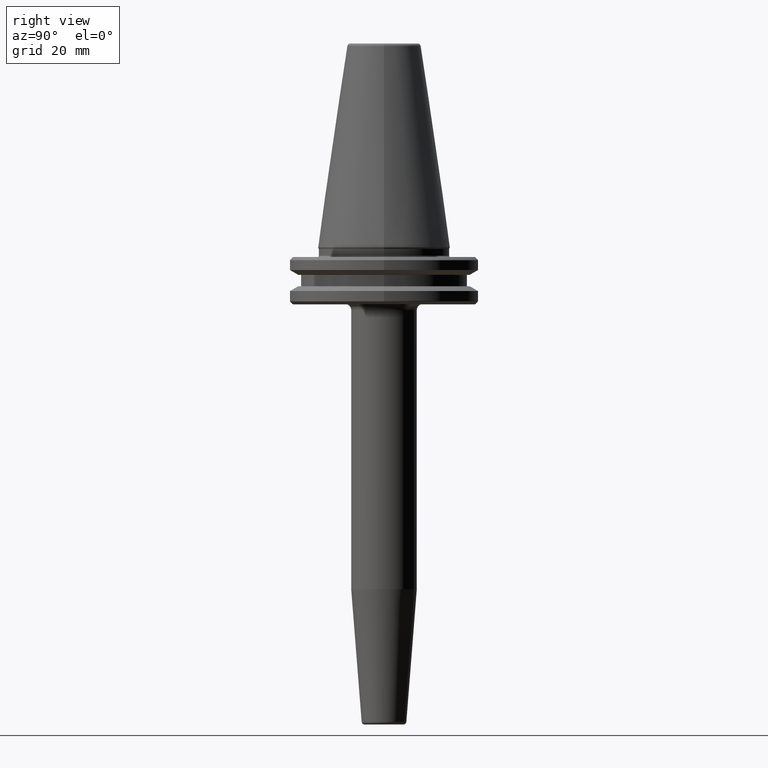
[diagram: clean part render]
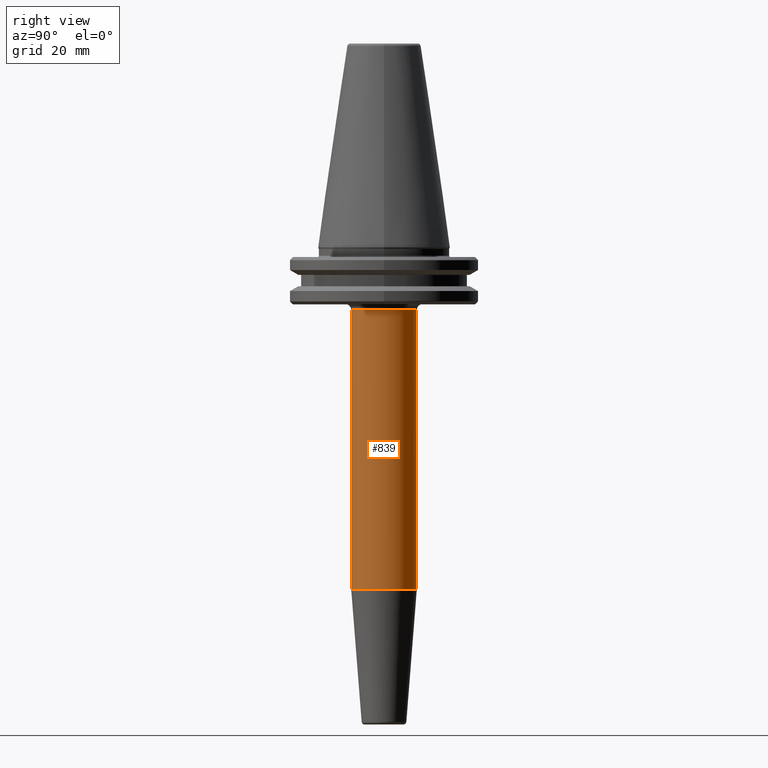
[diagram: same view with one face highlighted and labeled with its STEP entity id]
A machine part, right view. The second image highlights one B-rep face of the part: STEP entity #839.
In plain terms, the highlighted cylindrical surface (edge-blend (fillet) strip) has radius 11 mm, axis along (-0, 0, -1).
Its self-contained STEP definition (entity closure, byte-faithful):
#20 = CARTESIAN_POINT ( 'NONE',  ( 0.0000000000000000000, -1.701835490922485000E-014, -20.98284271247460700 ) ) ;
#34 = ORIENTED_EDGE ( 'NONE', *, *, #671, .F. ) ;
#42 = FACE_OUTER_BOUND ( 'NONE', #1220, .T. ) ;
#86 = CARTESIAN_POINT ( 'NONE',  ( 0.0000000000000000000, 11.00000000000001100, -160.0000000000000000 ) ) ;
#115 = VECTOR ( 'NONE', #676, 1000.000000000000000 ) ;
#123 = VERTEX_POINT ( 'NONE', #855 ) ;
#156 = VERTEX_POINT ( 'NONE', #284 ) ;
#178 = LINE ( 'NONE', #706, #659 ) ;
#202 = CARTESIAN_POINT ( 'NONE',  ( 1.347111479062089000E-015, 11.00000000000000000, -114.6067425191116100 ) ) ;
#215 = DIRECTION ( 'NONE',  ( 0.0000000000000000000, 1.000000000000000000, 0.0000000000000000000 ) ) ;
#284 = CARTESIAN_POINT ( 'NONE',  ( 0.0000000000000000000, -11.00000000000001100, -114.6067425191116100 ) ) ;
#311 = DIRECTION ( 'NONE',  ( -0.0000000000000000000, 1.256330602389183300E-016, -1.000000000000000000 ) ) ;
#313 = CARTESIAN_POINT ( 'NONE',  ( 0.0000000000000000000, -5.256097865015167400E-015, -114.6067425191116100 ) ) ;
#325 = CARTESIAN_POINT ( 'NONE',  ( 1.347111479062091400E-015, -11.00000000000003200, -20.98284271247460700 ) ) ;
#337 = LINE ( 'NONE', #86, #115 ) ;
#405 = ORIENTED_EDGE ( 'NONE', *, *, #1005, .T. ) ;
#543 = EDGE_CURVE ( 'NONE', #123, #609, #337, .T. ) ;
#609 = VERTEX_POINT ( 'NONE', #202 ) ;
#659 = VECTOR ( 'NONE', #1231, 1000.000000000000000 ) ;
#671 = EDGE_CURVE ( 'NONE', #609, #156, #675, .T. ) ;
#675 = CIRCLE ( 'NONE', #1025, 11.00000000000000500 ) ;
#676 = DIRECTION ( 'NONE',  ( -0.0000000000000000000, 1.256330602389183300E-016, -1.000000000000000000 ) ) ;
#706 = CARTESIAN_POINT ( 'NONE',  ( 1.347111479062089800E-015, -11.00000000000001100, -160.0000000000000000 ) ) ;
#786 = CYLINDRICAL_SURFACE ( 'NONE', #807, 11.00000000000001100 ) ;
#787 = DIRECTION ( 'NONE',  ( -0.0000000000000000000, 1.256330602389183300E-016, -1.000000000000000000 ) ) ;
#807 = AXIS2_PLACEMENT_3D ( 'NONE', #1095, #809, #1002 ) ;
#809 = DIRECTION ( 'NONE',  ( -0.0000000000000000000, 1.256330602389183300E-016, -1.000000000000000000 ) ) ;
#839 = ADVANCED_FACE ( 'NONE', ( #42 ), #786, .T. ) ;
#855 = CARTESIAN_POINT ( 'NONE',  ( 0.0000000000000000000, 10.99999999999999800, -20.98284271247460700 ) ) ;
#889 = DIRECTION ( 'NONE',  ( 0.0000000000000000000, 1.000000000000000000, 0.0000000000000000000 ) ) ;
#910 = EDGE_CURVE ( 'NONE', #123, #981, #1009, .T. ) ;
#981 = VERTEX_POINT ( 'NONE', #325 ) ;
#1002 = DIRECTION ( 'NONE',  ( 0.0000000000000000000, 1.000000000000000000, 0.0000000000000000000 ) ) ;
#1005 = EDGE_CURVE ( 'NONE', #981, #156, #178, .T. ) ;
#1009 = CIRCLE ( 'NONE', #1237, 11.00000000000001400 ) ;
#1025 = AXIS2_PLACEMENT_3D ( 'NONE', #313, #311, #889 ) ;
#1095 = CARTESIAN_POINT ( 'NONE',  ( 0.0000000000000000000, 4.467959865220142400E-016, -160.0000000000000000 ) ) ;
#1183 = ORIENTED_EDGE ( 'NONE', *, *, #543, .F. ) ;
#1220 = EDGE_LOOP ( 'NONE', ( #1260, #405, #34, #1183 ) ) ;
#1231 = DIRECTION ( 'NONE',  ( -0.0000000000000000000, 1.256330602389183300E-016, -1.000000000000000000 ) ) ;
#1237 = AXIS2_PLACEMENT_3D ( 'NONE', #20, #787, #215 ) ;
#1260 = ORIENTED_EDGE ( 'NONE', *, *, #910, .T. ) ;